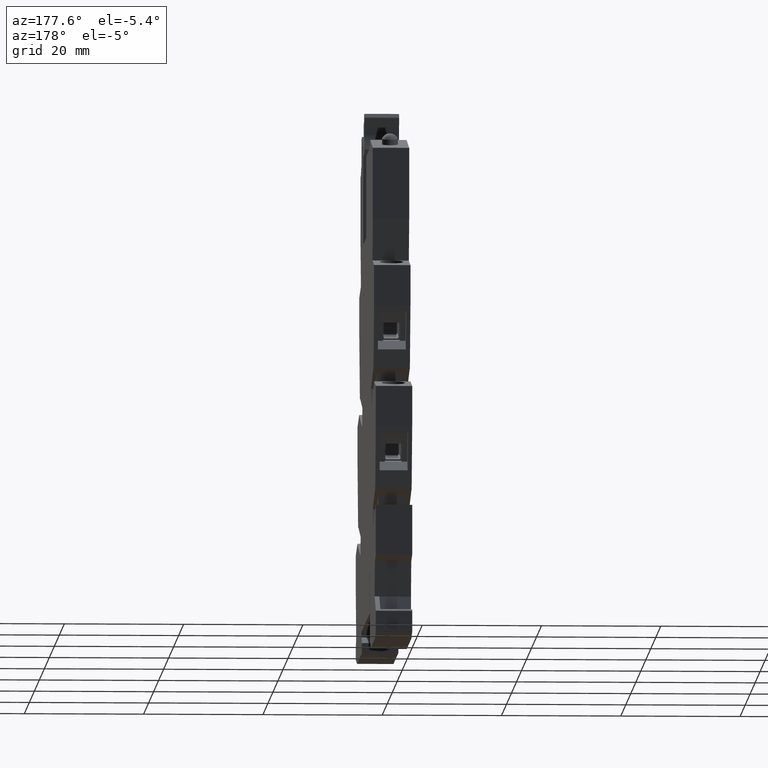
[diagram: clean part render]
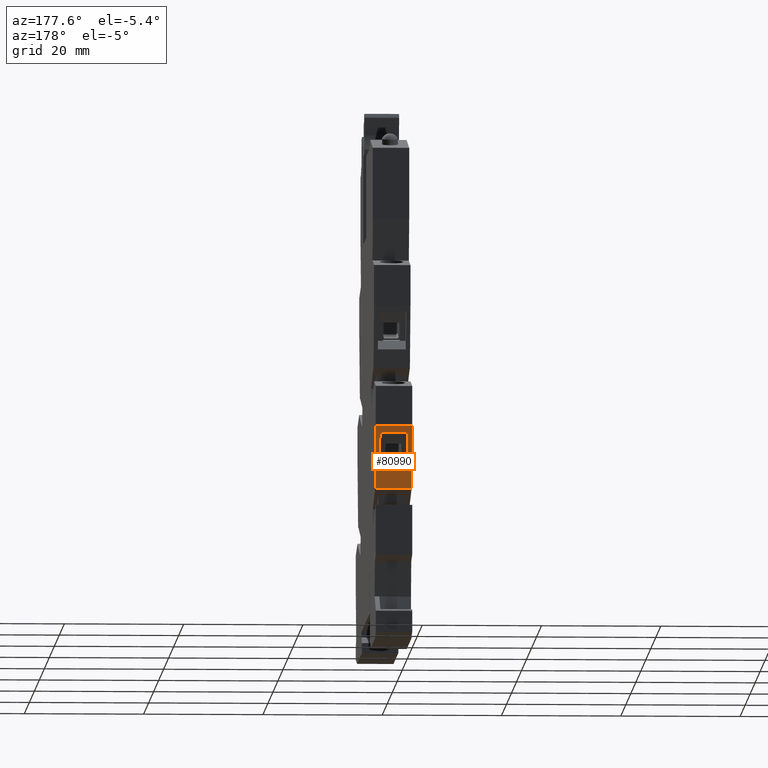
[diagram: same view with one face highlighted and labeled with its STEP entity id]
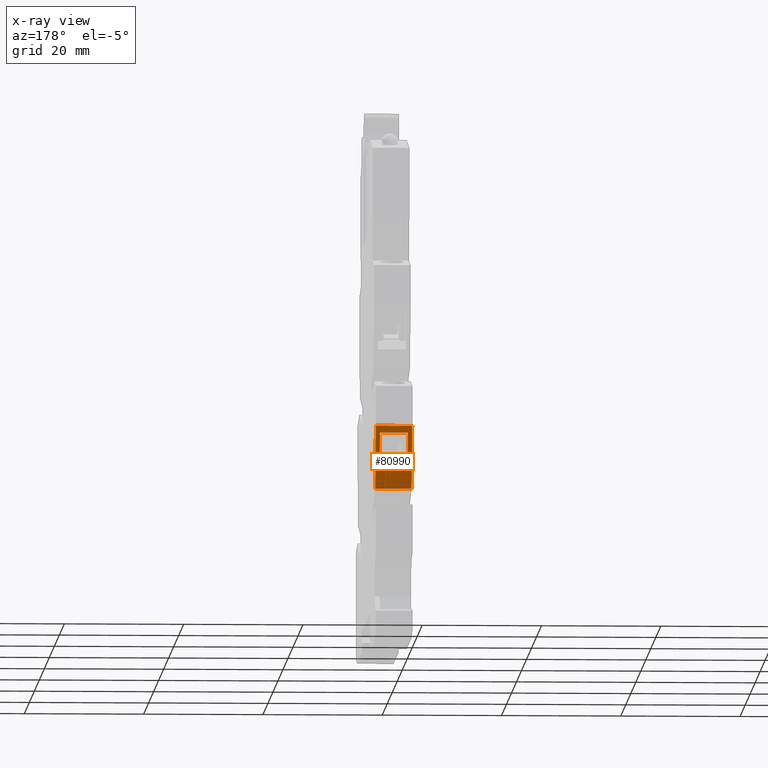
[diagram: x-ray of the same camera — body ghosted, the highlighted face saturated]
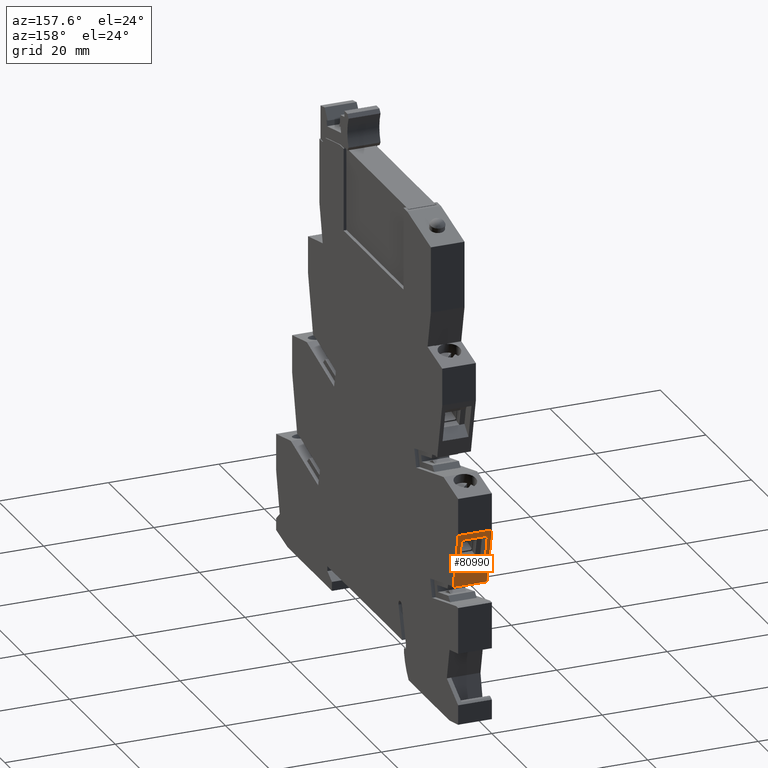
[diagram: same view with one face highlighted and labeled with its STEP entity id]
A machine part, auxiliary view. The second image highlights one B-rep face of the part: STEP entity #80990.
The next image is the same camera in x-ray: the body ghosted, the highlighted face saturated — about 0% of this face is hidden behind the body in this view.
A second angle (auxiliary view) of the same face is appended — the face is thin or edge-on in the first view.
In plain terms, the highlighted planar face has unit normal (-0, -0.9781, 0.2079).
Its self-contained STEP definition (entity closure, byte-faithful):
#3480=CARTESIAN_POINT('',(32.3989505230044,39.8995198598676,
-5.23669996255194E-12));
#3490=VERTEX_POINT('',#3480);
#3520=CARTESIAN_POINT('',(37.6362272392142,64.5389695909238,
-1.64490643328463E-12));
#3530=DIRECTION('',(-0.207911690818012,-0.978147600733752,
-1.82301780526294E-15));
#3540=VECTOR('',#3530,1.);
#3550=LINE('',#3520,#3540);
#3560=CARTESIAN_POINT('',(30.1948635032595,29.5301057032142,
-3.28626015289046E-14));
#3570=VERTEX_POINT('',#3560);
#3580=EDGE_CURVE('',#3490,#3570,#3550,.T.);
#48180=CARTESIAN_POINT('',(30.1948635032599,29.5301057032142,
-6.10000000000112));
#48190=VERTEX_POINT('',#48180);
#48220=CARTESIAN_POINT('',(22.1203642372364,-8.45742666263268,
-6.10000000000169));
#48230=DIRECTION('',(-0.207911690818012,-0.978147600733752,
-1.48769885299771E-14));
#48240=VECTOR('',#48230,1.);
#48250=LINE('',#48220,#48240);
#48260=CARTESIAN_POINT('',(32.3989505230042,39.8995198598676,
-6.10000000000665));
#48270=VERTEX_POINT('',#48260);
#48280=EDGE_CURVE('',#48270,#48190,#48250,.T.);
#74970=CARTESIAN_POINT('',(30.1948635032603,29.5301057032142,
-13.9000000000017));
#74980=DIRECTION('',(-2.26525774681942E-15,1.7265672457551E-14,1.));
#74990=VECTOR('',#74980,1.);
#75000=LINE('',#74970,#74990);
#75010=EDGE_CURVE('',#48190,#3570,#75000,.T.);
#80490=CARTESIAN_POINT('',(32.3989505230062,39.8995198602126,
1.22746257602557E-12));
#80500=DIRECTION('',(-0.978147600733752,0.207911690818012,
-6.72274824869288E-14));
#80510=DIRECTION('',(0.207911690818012,0.978147600733752,
1.48786650025576E-14));
#80520=AXIS2_PLACEMENT_3D('',#80490,#80500,#80510);
#80530=PLANE('',#80520);
#80540=ORIENTED_EDGE('',*,*,#3580,.T.);
#80550=CARTESIAN_POINT('',(32.3989505230047,39.8995198598675,
-5.30000000000362));
#80560=DIRECTION('',(1.0020697770065E-13,-1.30112745554891E-27,1.));
#80570=VECTOR('',#80560,1.);
#80580=LINE('',#80550,#80570);
#80590=EDGE_CURVE('',#48270,#3490,#80580,.T.);
#80600=ORIENTED_EDGE('',*,*,#80590,.T.);
#80610=ORIENTED_EDGE('',*,*,#48280,.F.);
#80620=ORIENTED_EDGE('',*,*,#75010,.F.);
#80630=EDGE_LOOP('',(#80620,#80610,#80600,#80540));
#80640=FACE_OUTER_BOUND('',#80630,.T.);
#80650=CARTESIAN_POINT('',(22.3096617133723,-7.56685205710673,
-5.39999999999581));
#80660=DIRECTION('',(0.207911690817945,0.978147600733766,
-2.20442131186851E-14));
#80670=VECTOR('',#80660,1.);
#80680=LINE('',#80650,#80670);
#80690=CARTESIAN_POINT('',(30.8446124042356,32.5869339460057,
-5.39999999999671));
#80700=VERTEX_POINT('',#80690);
#80710=CARTESIAN_POINT('',(32.1674371403368,38.8103350290245,
-5.39999999999685));
#80720=VERTEX_POINT('',#80710);
#80730=EDGE_CURVE('',#80700,#80720,#80680,.T.);
#80740=ORIENTED_EDGE('',*,*,#80730,.F.);
#80750=CARTESIAN_POINT('',(32.1674371403364,38.8103350290244,
-14.8000000000112));
#80760=DIRECTION('',(4.03837667220077E-14,1.3977379553274E-14,1.));
#80770=VECTOR('',#80760,1.);
#80780=LINE('',#80750,#80770);
#80790=CARTESIAN_POINT('',(32.167437140337,38.8103350290245,
-0.700000000005207));
#80800=VERTEX_POINT('',#80790);
#80810=EDGE_CURVE('',#80720,#80800,#80780,.T.);
#80820=ORIENTED_EDGE('',*,*,#80810,.F.);
#80830=CARTESIAN_POINT('',(17.6566764422362,-29.4574266626336,
-0.70000000000366));
#80840=DIRECTION('',(-0.207911690817945,-0.978147600733766,
2.21576196096785E-14));
#80850=VECTOR('',#80840,1.);
#80860=LINE('',#80830,#80850);
#80870=CARTESIAN_POINT('',(30.8446124042359,32.586933946006,
-0.700000000005065));
#80880=VERTEX_POINT('',#80870);
#80890=EDGE_CURVE('',#80800,#80880,#80860,.T.);
#80900=ORIENTED_EDGE('',*,*,#80890,.F.);
#80910=CARTESIAN_POINT('',(30.8446124042352,32.5869339460052,
-14.800000000011));
#80920=DIRECTION('',(-4.858302299104E-14,-5.25518474718574E-14,-1.));
#80930=VECTOR('',#80920,1.);
#80940=LINE('',#80910,#80930);
#80950=EDGE_CURVE('',#80880,#80700,#80940,.T.);
#80960=ORIENTED_EDGE('',*,*,#80950,.F.);
#80970=EDGE_LOOP('',(#80960,#80900,#80820,#80740));
#80980=FACE_BOUND('',#80970,.T.);
#80990=ADVANCED_FACE('',(#80640,#80980),#80530,.F.);